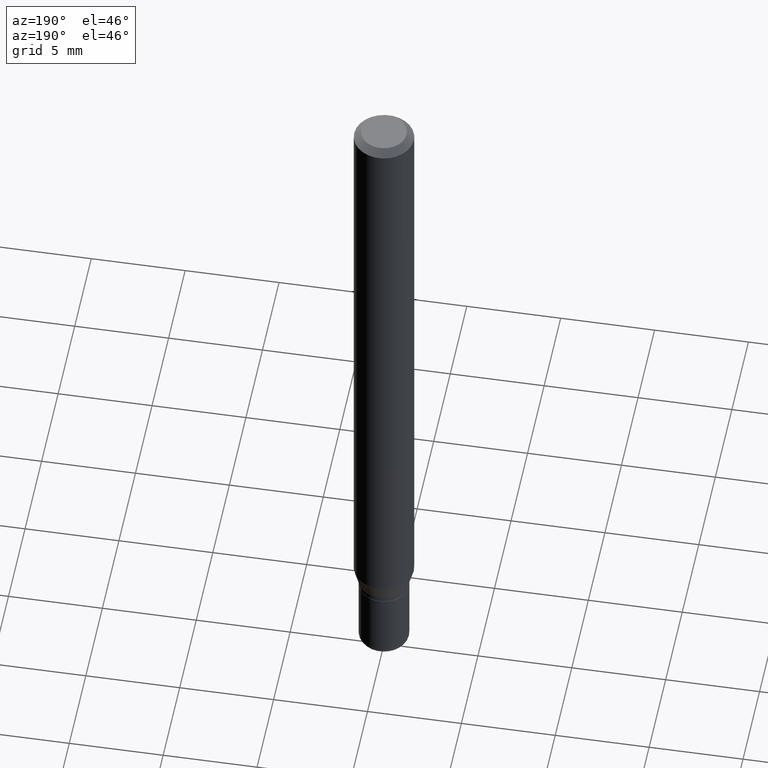
[diagram: clean part render]
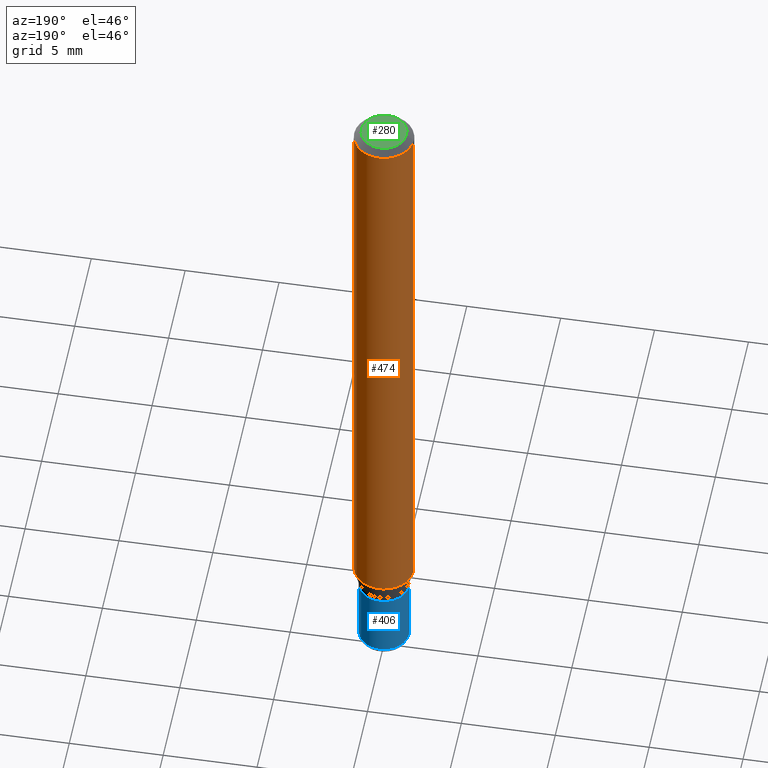
[diagram: same view with three faces highlighted in distinct colors, each labeled with its STEP entity id]
A machine part, auxiliary view with three faces highlighted in distinct colors.
Their STEP definitions:

[orange] entity #474 — the highlighted cylindrical surface (edge-blend (fillet) strip) has radius 1.5875 mm, axis along (-0, 0, 1).
#6 = CARTESIAN_POINT ( 'NONE',  ( 0.06250000000000000000, -4.888073874380378612E-16, -0.01499999999999970281 ) ) ;
#8 = DIRECTION ( 'NONE',  ( -2.445468806185136597E-29, 3.491481338843145583E-15, 1.000000000000000000 ) ) ;
#14 = LINE ( 'NONE', #246, #409 ) ;
#38 = DIRECTION ( 'NONE',  ( -2.445468806185136877E-29, 3.491481338843145188E-15, 1.000000000000000000 ) ) ;
#75 = VERTEX_POINT ( 'NONE', #6 ) ;
#83 = VERTEX_POINT ( 'NONE', #162 ) ;
#96 = CARTESIAN_POINT ( 'NONE',  ( -0.06250000000000000000, -1.842271543109589479E-15, -0.01499999999999970281 ) ) ;
#97 = EDGE_CURVE ( 'NONE', #398, #83, #364, .T. ) ;
#103 = AXIS2_PLACEMENT_3D ( 'NONE', #272, #228, #117 ) ;
#116 = ORIENTED_EDGE ( 'NONE', *, *, #174, .F. ) ;
#117 = DIRECTION ( 'NONE',  ( 1.000000000000000000, -6.982962677686266711E-15, 0.000000000000000000 ) ) ;
#156 = CARTESIAN_POINT ( 'NONE',  ( 0.06250000000000000000, -4.956784453192050752E-15, -1.294679491924311421 ) ) ;
#162 = CARTESIAN_POINT ( 'NONE',  ( -0.06250000000000000000, -4.076260075986595677E-15, -1.294679491924311421 ) ) ;
#163 = CARTESIAN_POINT ( 'NONE',  ( 3.166098311508524908E-29, -4.520349285836658294E-15, -1.294679491924311421 ) ) ;
#174 = EDGE_CURVE ( 'NONE', #398, #75, #14, .T. ) ;
#175 = ORIENTED_EDGE ( 'NONE', *, *, #440, .F. ) ;
#228 = DIRECTION ( 'NONE',  ( -2.445468806185136597E-29, 3.491481338843145583E-15, 1.000000000000000000 ) ) ;
#236 = DIRECTION ( 'NONE',  ( 1.000000000000000000, -6.982962677686266711E-15, 4.876176775795935793E-29 ) ) ;
#238 = CARTESIAN_POINT ( 'NONE',  ( 0.000000000000000000, 0.000000000000000000, 0.000000000000000000 ) ) ;
#246 = CARTESIAN_POINT ( 'NONE',  ( 0.06250000000000000000, -4.364351673553916694E-16, 3.047610484872459871E-30 ) ) ;
#262 = LINE ( 'NONE', #265, #400 ) ;
#265 = CARTESIAN_POINT ( 'NONE',  ( -0.06250000000000000000, 4.440892098500626162E-16, -3.074334431409316114E-30 ) ) ;
#268 = VERTEX_POINT ( 'NONE', #96 ) ;
#272 = CARTESIAN_POINT ( 'NONE',  ( 3.668203209277632395E-31, -5.237222008264614861E-17, -0.01499999999999970281 ) ) ;
#284 = DIRECTION ( 'NONE',  ( 1.000000000000000000, -6.982962677686262766E-15, 0.000000000000000000 ) ) ;
#296 = DIRECTION ( 'NONE',  ( -2.445468806185136877E-29, 3.491481338843145188E-15, 1.000000000000000000 ) ) ;
#323 = CYLINDRICAL_SURFACE ( 'NONE', #492, 0.06250000000000000000 ) ;
#335 = EDGE_LOOP ( 'NONE', ( #518, #347, #175, #116 ) ) ;
#347 = ORIENTED_EDGE ( 'NONE', *, *, #394, .T. ) ;
#364 = CIRCLE ( 'NONE', #415, 0.06250000000000000000 ) ;
#394 = EDGE_CURVE ( 'NONE', #83, #268, #262, .T. ) ;
#398 = VERTEX_POINT ( 'NONE', #156 ) ;
#400 = VECTOR ( 'NONE', #38, 39.37007874015748143 ) ;
#409 = VECTOR ( 'NONE', #296, 39.37007874015748143 ) ;
#415 = AXIS2_PLACEMENT_3D ( 'NONE', #163, #8, #284 ) ;
#440 = EDGE_CURVE ( 'NONE', #75, #268, #469, .T. ) ;
#469 = CIRCLE ( 'NONE', #103, 0.06250000000000000000 ) ;
#473 = FACE_OUTER_BOUND ( 'NONE', #335, .T. ) ;
#474 = ADVANCED_FACE ( 'NONE', ( #473 ), #323, .T. ) ;
#490 = DIRECTION ( 'NONE',  ( -2.445468806185136597E-29, 3.491481338843145583E-15, 1.000000000000000000 ) ) ;
#492 = AXIS2_PLACEMENT_3D ( 'NONE', #238, #490, #236 ) ;
#518 = ORIENTED_EDGE ( 'NONE', *, *, #97, .T. ) ;

[blue] entity #406 — the highlighted cylindrical surface (edge-blend (fillet) strip) has radius 1.3335 mm, axis along (-0, 0, 1).
#3 = DIRECTION ( 'NONE',  ( -2.445468806185136877E-29, 3.491481338843145188E-15, 1.000000000000000000 ) ) ;
#7 = CIRCLE ( 'NONE', #45, 0.05249999999999997724 ) ;
#11 = CARTESIAN_POINT ( 'NONE',  ( 0.05249999999999999806, -5.053919237975452413E-15, -1.342500000000000249 ) ) ;
#12 = VECTOR ( 'NONE', #3, 39.37007874015748143 ) ;
#25 = CARTESIAN_POINT ( 'NONE',  ( 0.05249999999999997724, -5.551455328760600652E-15, -1.485000000000000098 ) ) ;
#30 = CARTESIAN_POINT ( 'NONE',  ( -0.05249999999999999806, -4.563046806515444838E-15, -1.342500000000000249 ) ) ;
#39 = CARTESIAN_POINT ( 'NONE',  ( 3.631521177184928138E-29, -5.184849788182071492E-15, -1.485000000000000098 ) ) ;
#40 = LINE ( 'NONE', #361, #12 ) ;
#42 = DIRECTION ( 'NONE',  ( -2.445468806185136877E-29, 3.491481338843145188E-15, 1.000000000000000000 ) ) ;
#45 = AXIS2_PLACEMENT_3D ( 'NONE', #39, #48, #242 ) ;
#48 = DIRECTION ( 'NONE',  ( -2.445468806185136597E-29, 3.491481338843145583E-15, 1.000000000000000000 ) ) ;
#49 = DIRECTION ( 'NONE',  ( -2.445468806185136597E-29, 3.491481338843145583E-15, 1.000000000000000000 ) ) ;
#70 = EDGE_CURVE ( 'NONE', #402, #106, #7, .T. ) ;
#72 = VERTEX_POINT ( 'NONE', #11 ) ;
#79 = CIRCLE ( 'NONE', #256, 0.05249999999999999806 ) ;
#106 = VERTEX_POINT ( 'NONE', #443 ) ;
#108 = CARTESIAN_POINT ( 'NONE',  ( 3.283041872303546419E-29, -4.687313697396923253E-15, -1.342500000000000249 ) ) ;
#114 = ORIENTED_EDGE ( 'NONE', *, *, #502, .F. ) ;
#147 = ORIENTED_EDGE ( 'NONE', *, *, #487, .T. ) ;
#149 = ORIENTED_EDGE ( 'NONE', *, *, #297, .F. ) ;
#195 = AXIS2_PLACEMENT_3D ( 'NONE', #259, #430, #234 ) ;
#210 = DIRECTION ( 'NONE',  ( 1.000000000000000000, -6.982962677686268288E-15, 0.000000000000000000 ) ) ;
#234 = DIRECTION ( 'NONE',  ( 1.000000000000000000, -6.982962677686267499E-15, 4.876176775795935793E-29 ) ) ;
#242 = DIRECTION ( 'NONE',  ( 1.000000000000000000, -6.982962677686270655E-15, 0.000000000000000000 ) ) ;
#256 = AXIS2_PLACEMENT_3D ( 'NONE', #108, #49, #210 ) ;
#259 = CARTESIAN_POINT ( 'NONE',  ( 0.000000000000000000, 0.000000000000000000, 0.000000000000000000 ) ) ;
#297 = EDGE_CURVE ( 'NONE', #402, #72, #479, .T. ) ;
#321 = CARTESIAN_POINT ( 'NONE',  ( 0.05249999999999998418, -3.666055405785289136E-16, 2.559992807292865661E-30 ) ) ;
#361 = CARTESIAN_POINT ( 'NONE',  ( -0.05249999999999998418, 3.730349362740524852E-16, -2.582440922383824961E-30 ) ) ;
#387 = CYLINDRICAL_SURFACE ( 'NONE', #195, 0.05249999999999998418 ) ;
#397 = VECTOR ( 'NONE', #42, 39.37007874015748143 ) ;
#401 = FACE_OUTER_BOUND ( 'NONE', #507, .T. ) ;
#402 = VERTEX_POINT ( 'NONE', #25 ) ;
#406 = ADVANCED_FACE ( 'NONE', ( #401 ), #387, .T. ) ;
#430 = DIRECTION ( 'NONE',  ( -2.445468806185136597E-29, 3.491481338843145583E-15, 1.000000000000000000 ) ) ;
#443 = CARTESIAN_POINT ( 'NONE',  ( -0.05249999999999997724, -4.563046806515444838E-15, -1.485000000000000098 ) ) ;
#463 = VERTEX_POINT ( 'NONE', #30 ) ;
#479 = LINE ( 'NONE', #321, #397 ) ;
#485 = ORIENTED_EDGE ( 'NONE', *, *, #70, .T. ) ;
#487 = EDGE_CURVE ( 'NONE', #106, #463, #40, .T. ) ;
#502 = EDGE_CURVE ( 'NONE', #72, #463, #79, .T. ) ;
#507 = EDGE_LOOP ( 'NONE', ( #485, #147, #114, #149 ) ) ;

[green] entity #280 — the highlighted planar face has unit normal (0, -0, -1).
#27 = VERTEX_POINT ( 'NONE', #318 ) ;
#37 = EDGE_CURVE ( 'NONE', #62, #27, #167, .T. ) ;
#41 = EDGE_CURVE ( 'NONE', #27, #62, #276, .T. ) ;
#52 = AXIS2_PLACEMENT_3D ( 'NONE', #368, #367, #244 ) ;
#54 = DIRECTION ( 'NONE',  ( 2.438088387897960049E-29, -3.491481338843145188E-15, -1.000000000000000000 ) ) ;
#62 = VERTEX_POINT ( 'NONE', #235 ) ;
#126 = AXIS2_PLACEMENT_3D ( 'NONE', #219, #54, #173 ) ;
#167 = CIRCLE ( 'NONE', #225, 0.04750000000000000749 ) ;
#173 = DIRECTION ( 'NONE',  ( -1.000000000000000000, 6.982962677686265922E-15, -4.876176775795935793E-29 ) ) ;
#180 = ORIENTED_EDGE ( 'NONE', *, *, #41, .T. ) ;
#219 = CARTESIAN_POINT ( 'NONE',  ( 3.316907271900976589E-16, 0.04750000000000000749, -2.925296391183627249E-17 ) ) ;
#225 = AXIS2_PLACEMENT_3D ( 'NONE', #486, #279, #366 ) ;
#235 = CARTESIAN_POINT ( 'NONE',  ( 0.04750000000000000749, -4.035134999187568762E-16, 2.731847993664288856E-16 ) ) ;
#239 = ORIENTED_EDGE ( 'NONE', *, *, #37, .T. ) ;
#244 = DIRECTION ( 'NONE',  ( 1.000000000000000000, -6.982962677686266711E-15, 4.852736867747365086E-29 ) ) ;
#276 = CIRCLE ( 'NONE', #52, 0.04750000000000000749 ) ;
#279 = DIRECTION ( 'NONE',  ( -2.445468806185136597E-29, 3.491481338843145583E-15, 1.000000000000000000 ) ) ;
#280 = ADVANCED_FACE ( 'NONE', ( #416 ), #448, .F. ) ;
#318 = CARTESIAN_POINT ( 'NONE',  ( -0.04750000000000000749, 3.578768372314221353E-16, 2.731847993664239060E-16 ) ) ;
#366 = DIRECTION ( 'NONE',  ( 1.000000000000000000, -6.982962677686266711E-15, 4.852736867747365086E-29 ) ) ;
#367 = DIRECTION ( 'NONE',  ( -2.445468806185136597E-29, 3.491481338843145583E-15, 1.000000000000000000 ) ) ;
#368 = CARTESIAN_POINT ( 'NONE',  ( -6.680649051745406845E-45, 9.538196290434862081E-31, 2.731847993664263218E-16 ) ) ;
#416 = FACE_OUTER_BOUND ( 'NONE', #446, .T. ) ;
#446 = EDGE_LOOP ( 'NONE', ( #180, #239 ) ) ;
#448 = PLANE ( 'NONE',  #126 ) ;
#486 = CARTESIAN_POINT ( 'NONE',  ( -6.680649051745406845E-45, 9.538196290434862081E-31, 2.731847993664263218E-16 ) ) ;